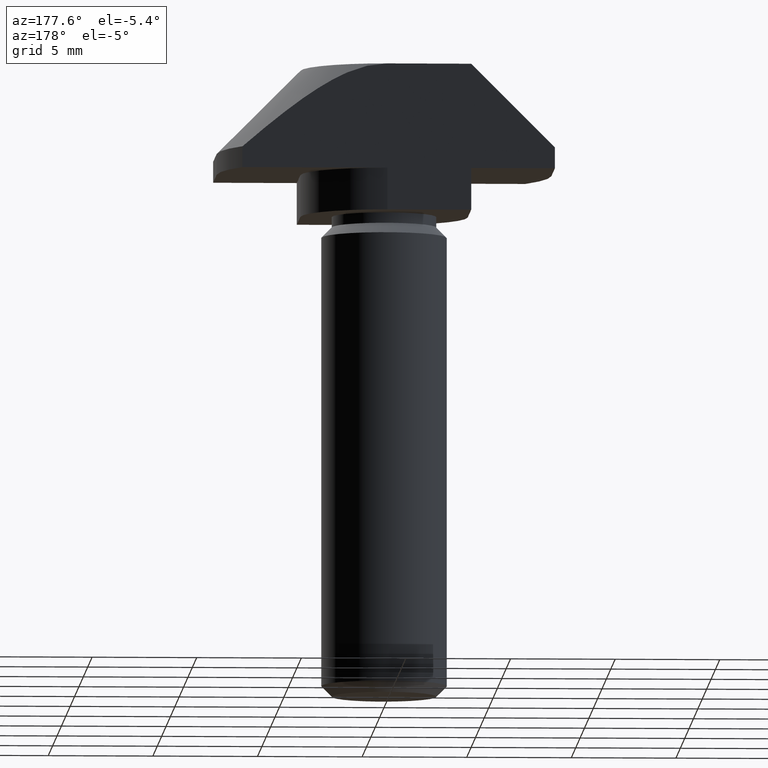
[diagram: clean part render]
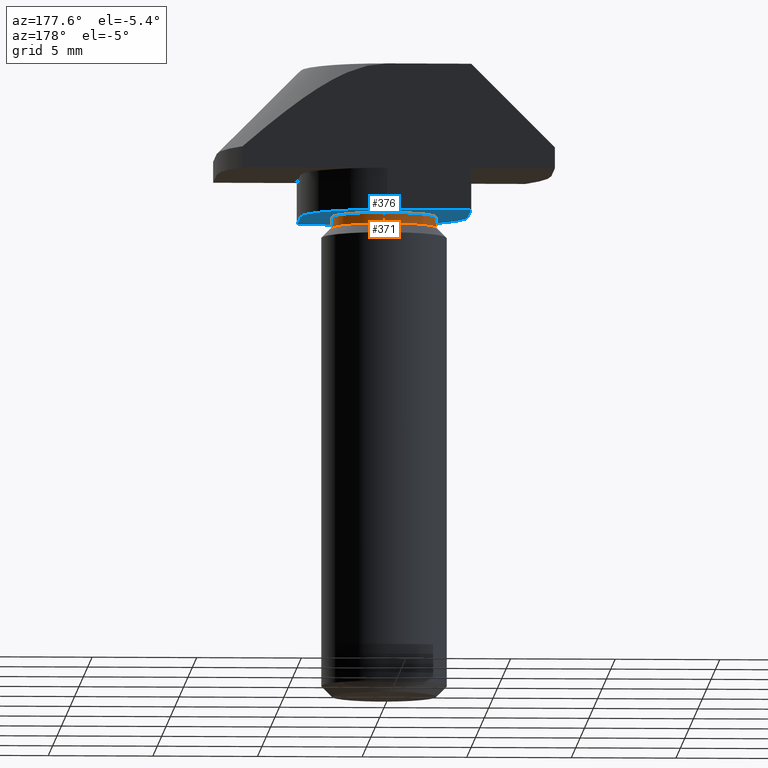
[diagram: same view with the hole feature highlighted: cylindrical wall and planar end face, labeled with their STEP entity ids]
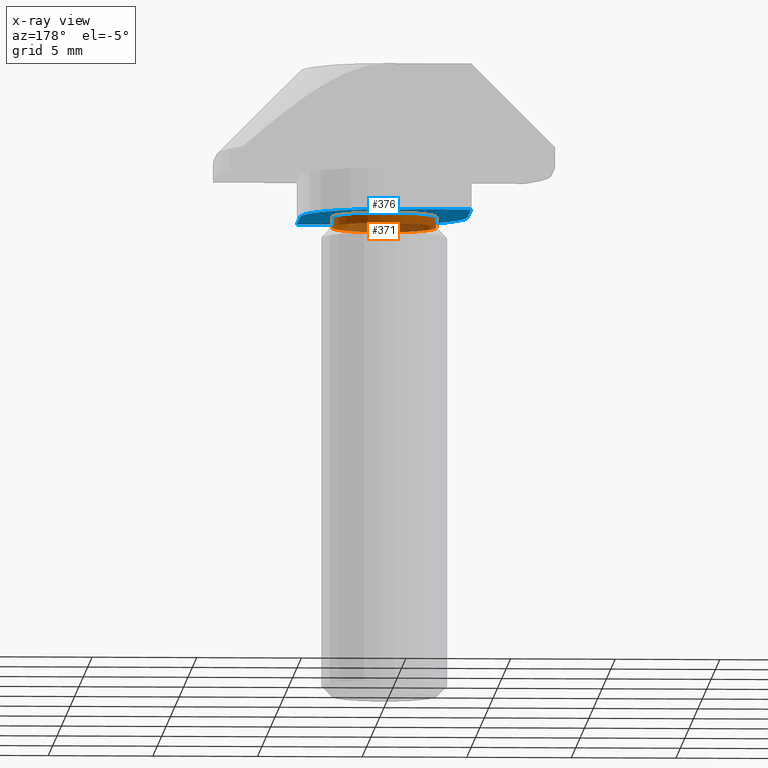
[diagram: x-ray of the same camera — body ghosted, the hole faces saturated]
A machine part, auxiliary view. The highlighted faces form one hole feature of diameter 5 mm: the cylindrical wall (entity #371, orange) and its adjacent planar end face (entity #376, blue) — they share a circular edge in the B-rep.
The next image is the same camera in x-ray (body ghosted, the hole faces saturated) — the bore reads through the body.
Wall:
#99=CYLINDRICAL_SURFACE('',#400,2.5);
#107=FACE_BOUND('',#140,.T.);
#113=FACE_OUTER_BOUND('',#139,.T.);
#139=EDGE_LOOP('',(#268));
#140=EDGE_LOOP('',(#269));
#161=CIRCLE('',#394,2.5);
#164=CIRCLE('',#401,2.5);
#176=VERTEX_POINT('',#546);
#179=VERTEX_POINT('',#556);
#211=EDGE_CURVE('',#176,#176,#161,.T.);
#214=EDGE_CURVE('',#179,#179,#164,.T.);
#268=ORIENTED_EDGE('',*,*,#211,.F.);
#269=ORIENTED_EDGE('',*,*,#214,.F.);
#371=ADVANCED_FACE('',(#113,#107),#99,.T.);
#394=AXIS2_PLACEMENT_3D('',#547,#436,#437);
#400=AXIS2_PLACEMENT_3D('',#555,#448,#449);
#401=AXIS2_PLACEMENT_3D('',#557,#450,#451);
#436=DIRECTION('center_axis',(0.,0.,-1.));
#437=DIRECTION('ref_axis',(1.,0.,0.));
#448=DIRECTION('center_axis',(0.,0.,-1.));
#449=DIRECTION('ref_axis',(1.,0.,0.));
#450=DIRECTION('center_axis',(0.,0.,1.));
#451=DIRECTION('ref_axis',(1.,0.,0.));
#546=CARTESIAN_POINT('',(-2.5,3.06161699786838E-16,-7.5));
#547=CARTESIAN_POINT('Origin',(0.,0.,-7.5));
#555=CARTESIAN_POINT('Origin',(0.,0.,-7.));
#556=CARTESIAN_POINT('',(-2.5,3.06161699786838E-16,-7.));
#557=CARTESIAN_POINT('Origin',(0.,0.,-7.));
End face:
#19=LINE('',#565,#53);
#24=LINE('',#580,#58);
#27=LINE('',#589,#61);
#28=LINE('',#590,#62);
#53=VECTOR('',#456,3.99999999999999);
#58=VECTOR('',#469,3.99999999999999);
#61=VECTOR('',#480,4.);
#62=VECTOR('',#481,3.99999999999999);
#88=PLANE('',#410);
#108=FACE_BOUND('',#146,.T.);
#118=FACE_OUTER_BOUND('',#145,.T.);
#145=EDGE_LOOP('',(#286,#287,#288,#289,#290,#291));
#146=EDGE_LOOP('',(#292));
#164=CIRCLE('',#401,2.5);
#166=CIRCLE('',#405,3.99999999999997);
#168=CIRCLE('',#409,3.99999999999999);
#179=VERTEX_POINT('',#556);
#182=VERTEX_POINT('',#562);
#183=VERTEX_POINT('',#564);
#185=VERTEX_POINT('',#570);
#188=VERTEX_POINT('',#577);
#189=VERTEX_POINT('',#579);
#191=VERTEX_POINT('',#585);
#214=EDGE_CURVE('',#179,#179,#164,.T.);
#217=EDGE_CURVE('',#183,#182,#19,.T.);
#220=EDGE_CURVE('',#185,#183,#166,.T.);
#224=EDGE_CURVE('',#189,#188,#24,.T.);
#227=EDGE_CURVE('',#191,#189,#168,.T.);
#229=EDGE_CURVE('',#182,#191,#27,.T.);
#230=EDGE_CURVE('',#188,#185,#28,.T.);
#286=ORIENTED_EDGE('',*,*,#229,.T.);
#287=ORIENTED_EDGE('',*,*,#227,.T.);
#288=ORIENTED_EDGE('',*,*,#224,.T.);
#289=ORIENTED_EDGE('',*,*,#230,.T.);
#290=ORIENTED_EDGE('',*,*,#220,.T.);
#291=ORIENTED_EDGE('',*,*,#217,.T.);
#292=ORIENTED_EDGE('',*,*,#214,.T.);
#376=ADVANCED_FACE('',(#118,#108),#88,.F.);
#401=AXIS2_PLACEMENT_3D('',#557,#450,#451);
#405=AXIS2_PLACEMENT_3D('',#571,#462,#463);
#409=AXIS2_PLACEMENT_3D('',#586,#475,#476);
#410=AXIS2_PLACEMENT_3D('',#588,#478,#479);
#450=DIRECTION('center_axis',(0.,0.,1.));
#451=DIRECTION('ref_axis',(1.,0.,0.));
#456=DIRECTION('',(0.,1.,0.));
#462=DIRECTION('center_axis',(0.,0.,-1.));
#463=DIRECTION('ref_axis',(-4.99600361081323E-15,1.,0.));
#469=DIRECTION('',(-1.38777878078145E-16,-1.,0.));
#475=DIRECTION('center_axis',(0.,0.,-1.));
#476=DIRECTION('ref_axis',(0.,-1.,0.));
#478=DIRECTION('center_axis',(0.,0.,1.));
#479=DIRECTION('ref_axis',(1.,0.,0.));
#480=DIRECTION('',(1.,0.,0.));
#481=DIRECTION('',(-1.,3.06161699786838E-16,0.));
#556=CARTESIAN_POINT('',(-2.5,3.06161699786838E-16,-7.));
#557=CARTESIAN_POINT('Origin',(0.,0.,-7.));
#562=CARTESIAN_POINT('',(-4.,3.99999999999998,-7.));
#564=CARTESIAN_POINT('',(-4.,-1.49880108324396E-14,-7.));
#565=CARTESIAN_POINT('',(-4.,3.99999999999998,-7.));
#570=CARTESIAN_POINT('',(0.,-3.99999999999999,-7.));
#571=CARTESIAN_POINT('Origin',(-1.99840144432528E-14,-1.66533453693773E-14,
-7.));
#577=CARTESIAN_POINT('',(3.99999999999999,-3.99999999999999,-7.));
#579=CARTESIAN_POINT('',(3.99999999999999,-5.55111512312578E-16,-7.));
#580=CARTESIAN_POINT('',(3.99999999999999,-3.99999999999999,-7.));
#585=CARTESIAN_POINT('',(0.,3.99999999999998,-7.));
#586=CARTESIAN_POINT('Origin',(0.,0.,-7.));
#588=CARTESIAN_POINT('Origin',(-9.00631262865942E-16,-5.1581608691413E-15,
-7.));
#589=CARTESIAN_POINT('',(0.,3.99999999999998,-7.));
#590=CARTESIAN_POINT('',(0.,-3.99999999999999,-7.));